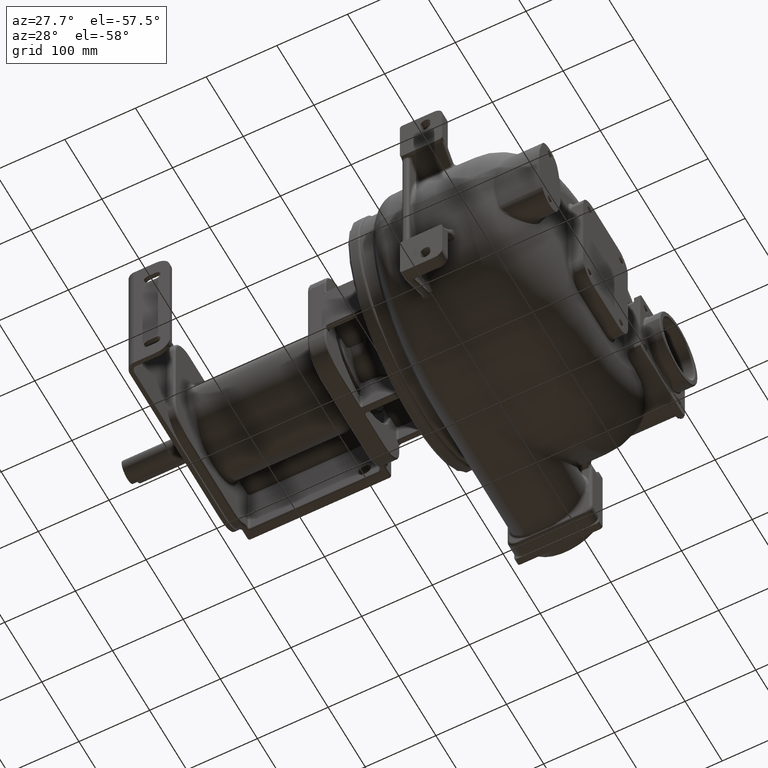
[diagram: clean part render]
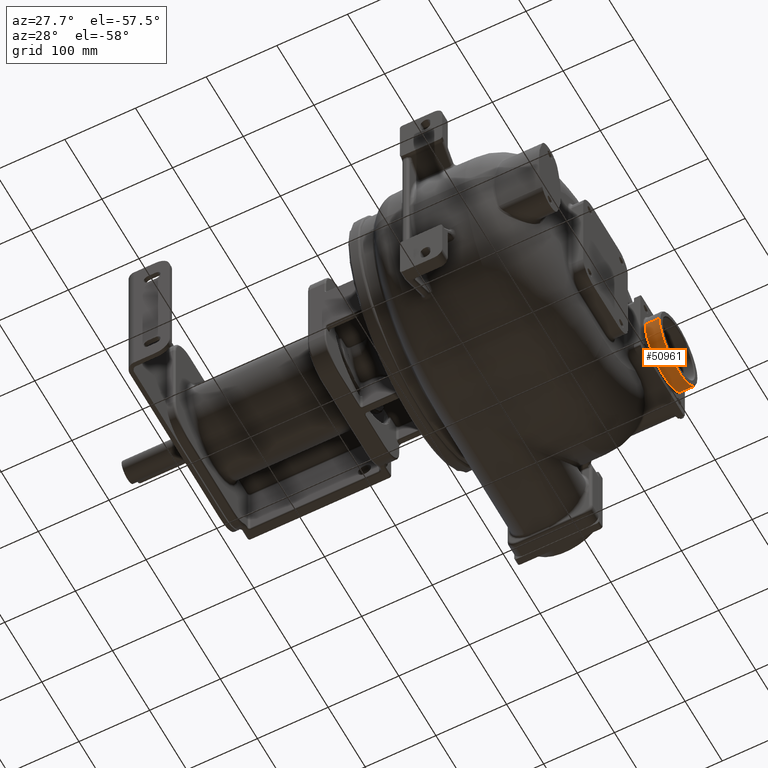
[diagram: same view with one face highlighted and labeled with its STEP entity id]
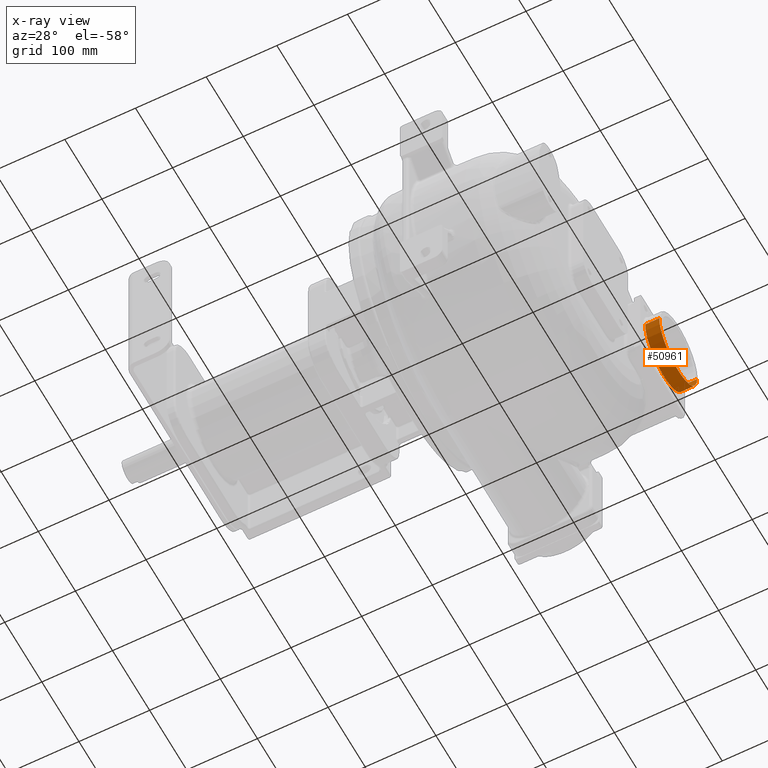
[diagram: x-ray of the same camera — body ghosted, the highlighted face saturated]
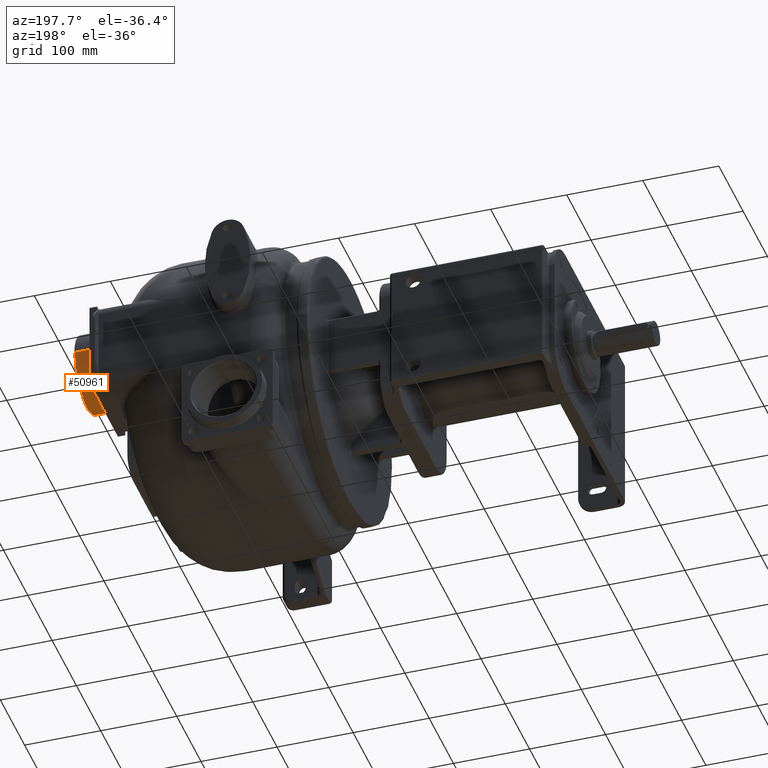
[diagram: same view with one face highlighted and labeled with its STEP entity id]
A machine part, auxiliary view. The second image highlights one B-rep face of the part: STEP entity #50961.
The next image is the same camera in x-ray: the body ghosted, the highlighted face saturated — about 0% of this face is hidden behind the body in this view.
A second angle (auxiliary view) of the same face is appended — the face is thin or edge-on in the first view.
In plain terms, the highlighted cylindrical surface (partial cylindrical patch) has radius 51 mm, axis along (1, 0, 0).
Its self-contained STEP definition (entity closure, byte-faithful):
#5252=CARTESIAN_POINT('',(1.54E2,3.5E2,-1.4E1));
#5253=DIRECTION('',(-1.E0,0.E0,0.E0));
#5254=DIRECTION('',(0.E0,1.E0,0.E0));
#5255=AXIS2_PLACEMENT_3D('',#5252,#5253,#5254);
#5257=CARTESIAN_POINT('',(1.74E2,3.5E2,-1.4E1));
#5258=DIRECTION('',(1.E0,0.E0,0.E0));
#5259=DIRECTION('',(0.E0,-1.E0,0.E0));
#5260=AXIS2_PLACEMENT_3D('',#5257,#5258,#5259);
#5262=DIRECTION('',(-1.E0,0.E0,0.E0));
#5263=VECTOR('',#5262,2.E1);
#5264=CARTESIAN_POINT('',(1.74E2,4.01E2,-1.4E1));
#5265=LINE('',#5264,#5263);
#5266=DIRECTION('',(-1.E0,0.E0,0.E0));
#5267=VECTOR('',#5266,2.E1);
#5268=CARTESIAN_POINT('',(1.74E2,2.99E2,-1.4E1));
#5269=LINE('',#5268,#5267);
#40161=CARTESIAN_POINT('',(1.54E2,4.01E2,-1.4E1));
#40163=VERTEX_POINT('',#40161);
#40165=CARTESIAN_POINT('',(1.54E2,2.99E2,-1.4E1));
#40167=VERTEX_POINT('',#40165);
#40215=CARTESIAN_POINT('',(1.74E2,2.99E2,-1.4E1));
#40216=CARTESIAN_POINT('',(1.74E2,4.01E2,-1.4E1));
#40217=VERTEX_POINT('',#40215);
#40218=VERTEX_POINT('',#40216);
#50947=CARTESIAN_POINT('',(1.33E2,3.5E2,-1.4E1));
#50948=DIRECTION('',(1.E0,0.E0,0.E0));
#50949=DIRECTION('',(0.E0,1.E0,0.E0));
#50950=AXIS2_PLACEMENT_3D('',#50947,#50948,#50949);
#50951=CYLINDRICAL_SURFACE('',#50950,5.1E1);
#50953=ORIENTED_EDGE('',*,*,#50952,.T.);
#50955=ORIENTED_EDGE('',*,*,#50954,.T.);
#50956=ORIENTED_EDGE('',*,*,#50942,.T.);
#50958=ORIENTED_EDGE('',*,*,#50957,.F.);
#50959=EDGE_LOOP('',(#50953,#50955,#50956,#50958));
#50960=FACE_OUTER_BOUND('',#50959,.F.);
#50961=ADVANCED_FACE('',(#50960),#50951,.T.);
#5256=CIRCLE('',#5255,5.1E1);
#5261=CIRCLE('',#5260,5.1E1);
#50942=EDGE_CURVE('',#40163,#40167,#5256,.T.);
#50952=EDGE_CURVE('',#40217,#40218,#5261,.T.);
#50954=EDGE_CURVE('',#40218,#40163,#5265,.T.);
#50957=EDGE_CURVE('',#40217,#40167,#5269,.T.);